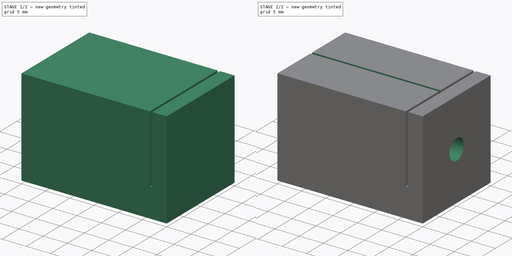
[diagram: build sequence overview — one tinted view per stage of 2, left to right]
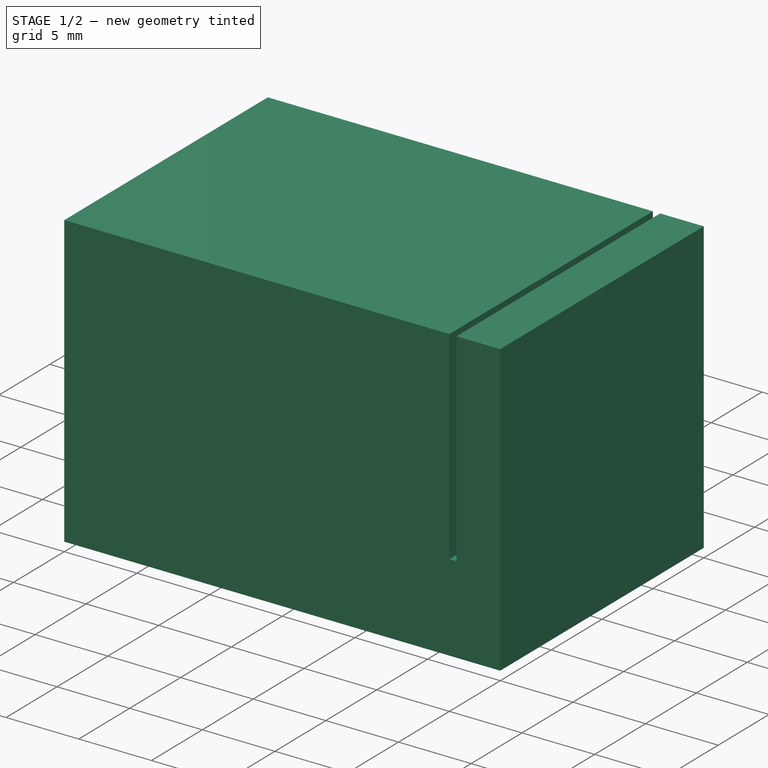
[diagram: stage 1 of 2 — iso view after this stage's code; geometry added in this stage tinted green]
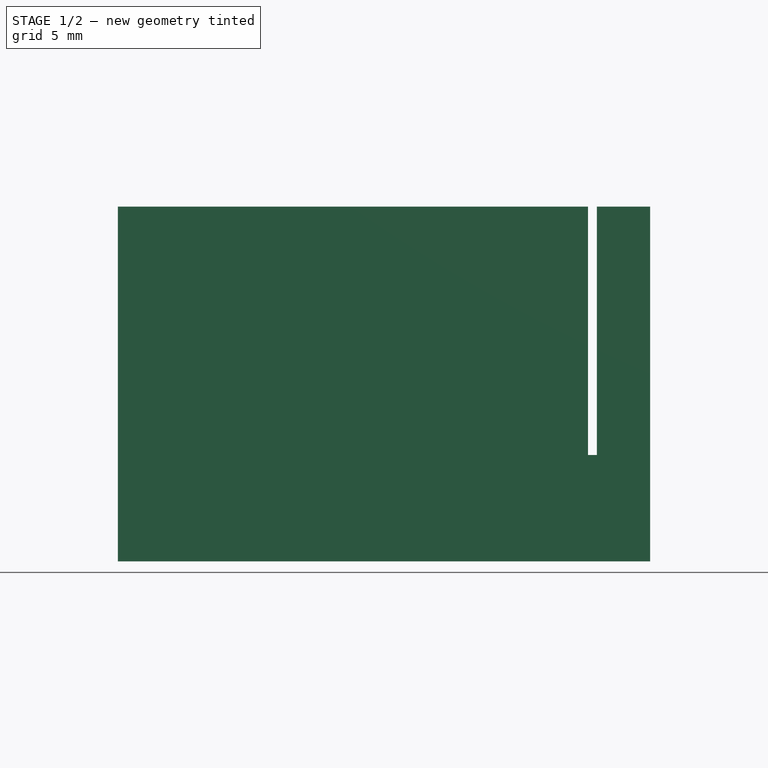
[diagram: stage 1 of 2 — front view after this stage's code; geometry added in this stage tinted green]
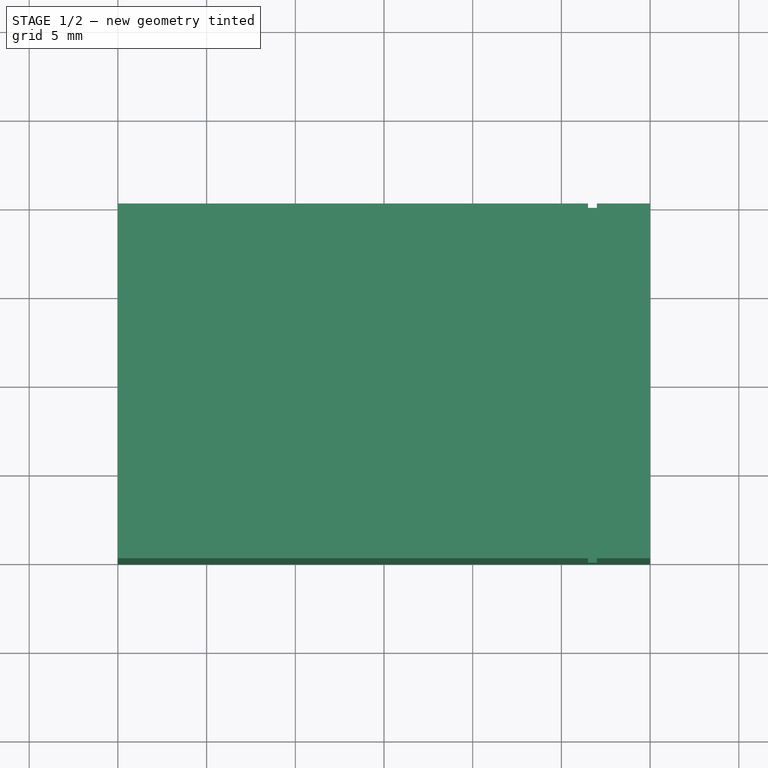
[diagram: stage 1 of 2 — top view after this stage's code; geometry added in this stage tinted green]
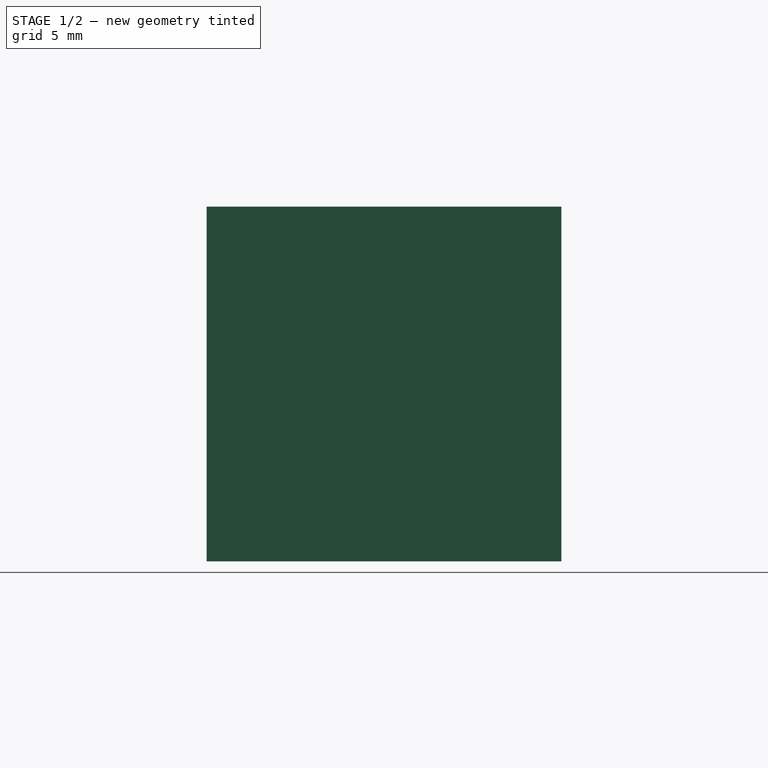
[diagram: stage 1 of 2 — right view after this stage's code; geometry added in this stage tinted green]
FCSTD DOCUMENT  (FreeCAD 1.0R39109 (Git))
Label: tube_saw_help
License: All rights reserved
LicenseURL: https://en.wikipedia.org/wiki/All_rights_reserved
objects: Sketcher::SketchObject×4, PartDesign::Pocket×3, Spreadsheet::Sheet×1, PartDesign::Pad×1, PartDesign::Body×1
note: 21 computed .brp shape members not serialized (recipe doc carries the construction recipe); baked Part::Feature solids carry a one-line shape summary decoded from their .brp

FEATURE [Spreadsheet::Sheet] Spreadsheet
  cells = A1='Height; B1(block_height)=20; A2='Width; B2(block_width)=30; A3='Depth; B3(block_depth)=20; A4='Cut position; B4(cut_position)=3; A5='Cut Width; B5(cut_width)=0.5; A6='Hole dia; B6(hole_dia)=4.2; A7='Tension slot width; B7(tension_slot_width)=0.5; A8='Slot depth factor; B8(slot_factor)=0.7; A12='Calculations; A13='Cut depth; B13(cut_depth)==block_height * slot_factor; A14='Tension slot depth; B14(tension_slot_dep)==block_width - cut_position - cut_width; A15='Tension slot height; B15(tension_slot_heig)==block_height * slot_factor
FEATURE [Sketcher::SketchObject] Sketch
  ArcFitTolerance = 1e-06
  AttachmentSupport = -> [XY_Plane]
  FullyConstrained = true
  MakeInternals = false
  MapMode = 5
  expr: Constraints[10] = Spreadsheet.block_width
  expr: Constraints[9] = Spreadsheet.block_depth
  sketch-geometry (4):
    g0: LineSegment StartX=-15 StartY=10 StartZ=0 EndX=-15 EndY=-10 EndZ=0
    g1: LineSegment StartX=-15 StartY=-10 StartZ=0 EndX=15 EndY=-10 EndZ=0
    g2: LineSegment StartX=15 StartY=-10 StartZ=0 EndX=15 EndY=10 EndZ=0
    g3: LineSegment StartX=15 StartY=10 StartZ=0 EndX=-15 EndY=10 EndZ=0
  constraints (11):
    c: Coincident(g0,g1)
    c: Coincident(g1,g2)
    c: Coincident(g2,g3)
    c: Coincident(g3,g0)
    c: Vertical(g0)
    c: Vertical(g2)
    c: Horizontal(g1)
    c: Horizontal(g3)
    c: Symmetric(g2,g0,g-1)
    c: DistanceY(g2,g2) = 20
    c: DistanceX(g1,g1) = 30
FEATURE [PartDesign::Pad] Pad  label="main_holder"
  Direction = (0,0,1)
  Length = 20
  Length2 = 10
  Profile = -> Sketch
  ReferenceAxis = -> Sketch [N_Axis]
  Refine = true
  Suppressed = false
  Type = 0
  expr: Length = Spreadsheet.block_height
FEATURE [Sketcher::SketchObject] Sketch001
  ArcFitTolerance = 1e-06
  AttachmentSupport = -> [Pad]
  ExternalGeometry = -> [Pad]
  FullyConstrained = true
  MakeInternals = false
  MapMode = 5
  Placement = pos=(0,-10,0) rot=(1,0,0;1.5708rad)
  expr: Constraints[10] = Spreadsheet.cut_position
  expr: Constraints[11] = Spreadsheet.cut_depth
  expr: Constraints[9] = Spreadsheet.cut_width
  sketch-geometry (4):
    g0: LineSegment StartX=11.5 StartY=20 StartZ=0 EndX=11.5 EndY=6 EndZ=0
    g1: LineSegment StartX=11.5 StartY=6 StartZ=0 EndX=12 EndY=6 EndZ=0
    g2: LineSegment StartX=12 StartY=6 StartZ=0 EndX=12 EndY=20 EndZ=0
    g3: LineSegment StartX=12 StartY=20 StartZ=0 EndX=11.5 EndY=20 EndZ=0
  constraints (12):
    c: Coincident(g0,g1)
    c: Coincident(g1,g2)
    c: Coincident(g2,g3)
    c: Coincident(g3,g0)
    c: Vertical(g0)
    c: Vertical(g2)
    c: Horizontal(g1)
    c: Horizontal(g3)
    c: PointOnObject(g0,g-4)
    c: DistanceX(g3,g3) = 0.5
    c: DistanceX(g2,g-4) = 3
    c: DistanceY(g2,g2) = 14
FEATURE [PartDesign::Pocket] Pocket  label="cut_slot"
  BaseFeature = -> Pad
  Direction = (0,1,-2e-16)
  Length = 5
  Length2 = 5
  Profile = -> Sketch001
  ReferenceAxis = -> Sketch001 [N_Axis]
  Refine = true
  Suppressed = false
  Type = 1
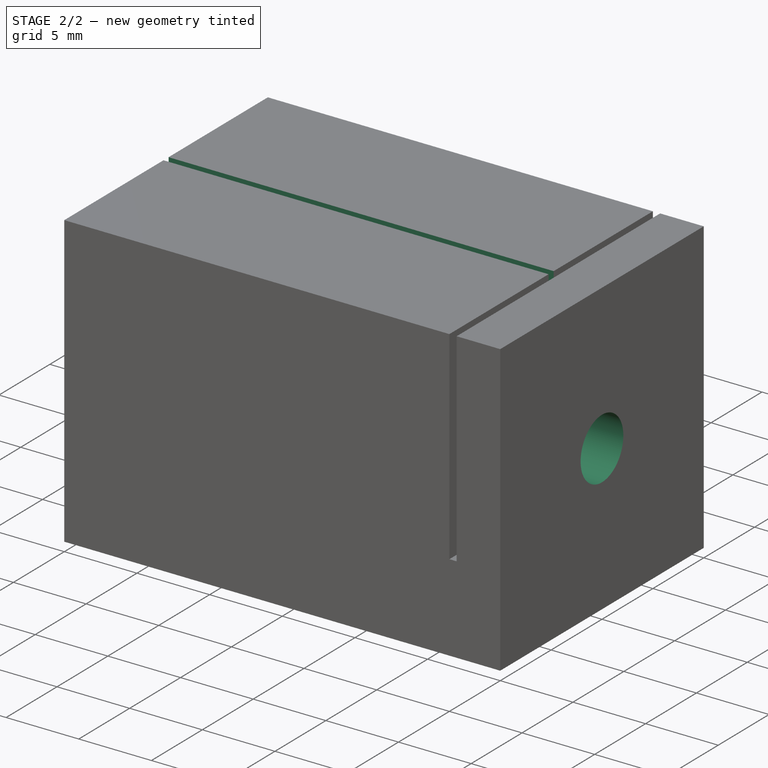
[diagram: stage 2 of 2 — iso view after this stage's code; geometry added in this stage tinted green]
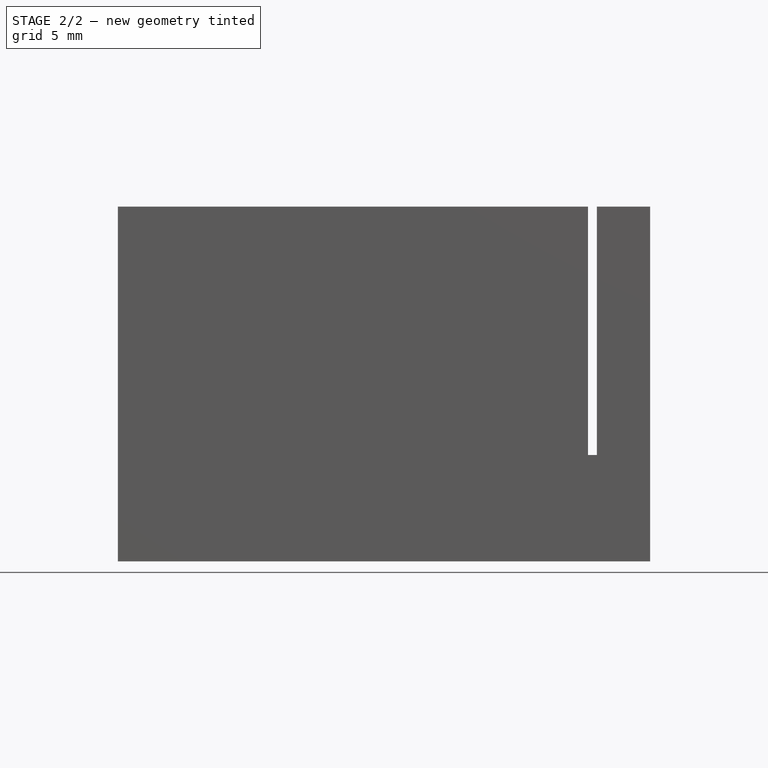
[diagram: stage 2 of 2 — front view after this stage's code; geometry added in this stage tinted green]
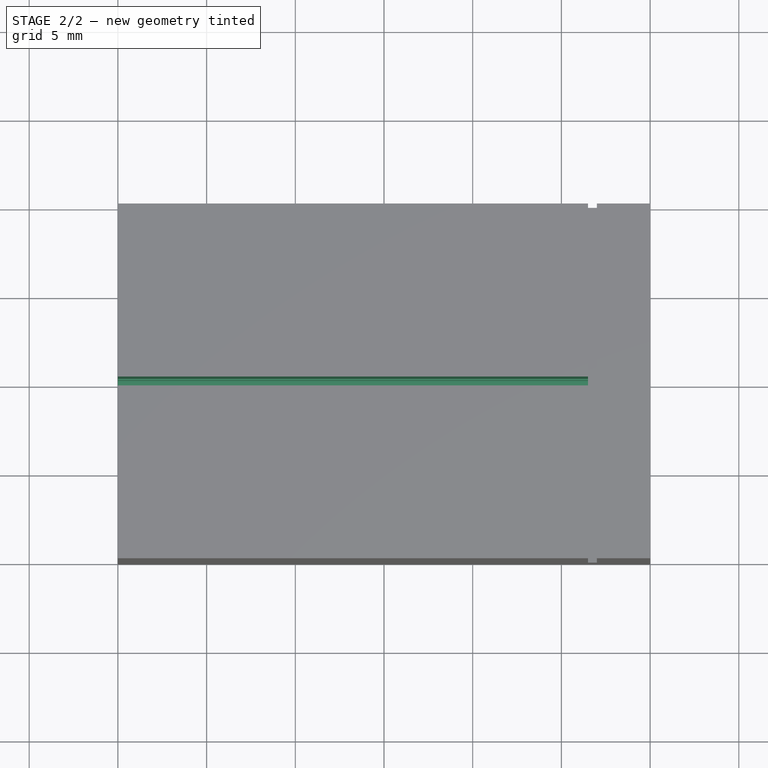
[diagram: stage 2 of 2 — top view after this stage's code; geometry added in this stage tinted green]
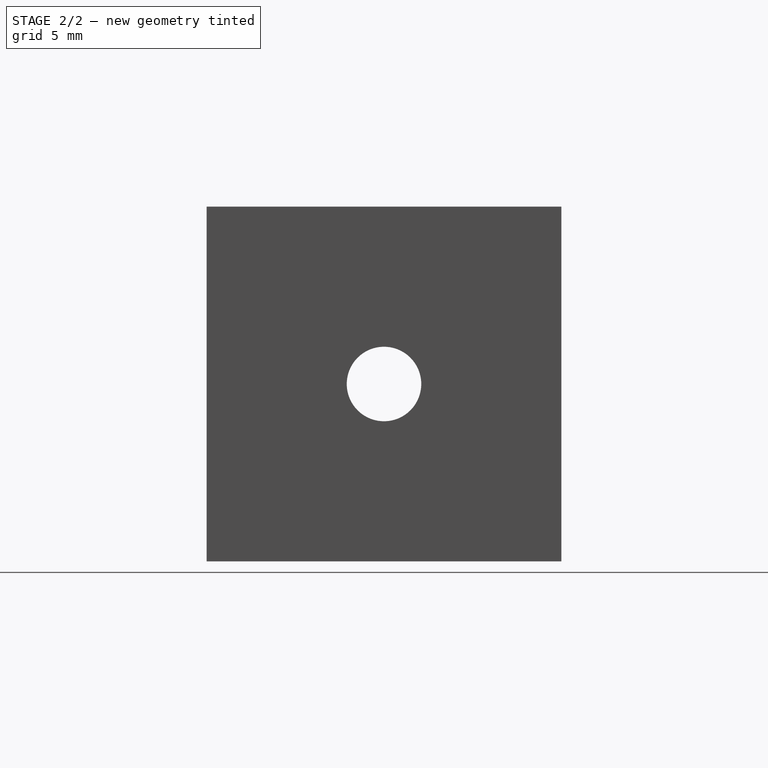
[diagram: stage 2 of 2 — right view after this stage's code; geometry added in this stage tinted green]
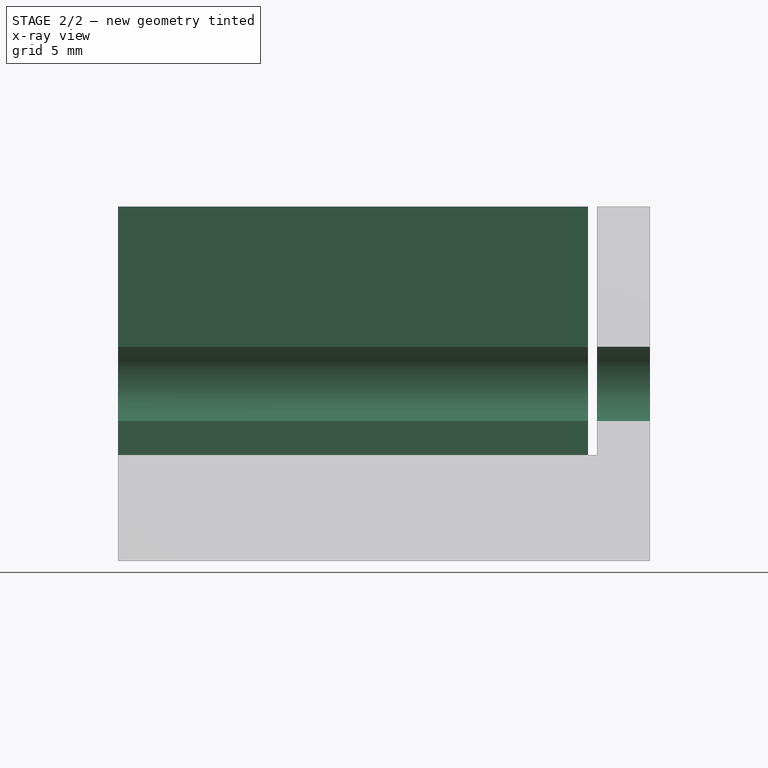
[diagram: stage 2 of 2 — x-ray composite at the front view; earlier geometry ghosted, this stage's added geometry solid]
FEATURE [Sketcher::SketchObject] Sketch002
  ArcFitTolerance = 1e-06
  AttachmentSupport = -> [Pocket]
  ExternalGeometry = -> [Pocket]
  FullyConstrained = true
  MakeInternals = false
  MapMode = 5
  Placement = pos=(15,0,0) rot=(0.57735,0.57735,0.57735;2.0944rad)
  expr: Constraints[1] = Spreadsheet.hole_dia
  sketch-geometry (1):
    g0: Circle CenterX=-1e-16 CenterY=10 CenterZ=0 NormalX=0 NormalY=0 NormalZ=1 AngleXU=0 Radius=2.1
  constraints (2):
    c: Symmetric(g-3,g-4,g0)
    c: Diameter(g0) = 4.2
FEATURE [PartDesign::Pocket] Pocket001  label="tube_hole"
  BaseFeature = -> Pocket
  Direction = (-1,0,0)
  Length = 5
  Length2 = 5
  Profile = -> Sketch002
  ReferenceAxis = -> Sketch002 [N_Axis]
  Refine = true
  Suppressed = false
  Type = 1
FEATURE [Sketcher::SketchObject] Sketch003
  ArcFitTolerance = 1e-06
  AttachmentSupport = -> [Pocket001]
  ExternalGeometry = -> [Pocket001]
  FullyConstrained = true
  MakeInternals = false
  MapMode = 5
  Placement = pos=(-15,0,0) rot=(0.57735,-0.57735,-0.57735;2.0944rad)
  expr: Constraints[11] = Spreadsheet.tension_slot_heig
  expr: Constraints[8] = Spreadsheet.tension_slot_width
  sketch-geometry (5):
    g0: LineSegment StartX=-0.25 StartY=20 StartZ=0 EndX=-0.25 EndY=6 EndZ=0
    g1: LineSegment StartX=-0.25 StartY=6 StartZ=0 EndX=0.25 EndY=6 EndZ=0
    g2: LineSegment StartX=0.25 StartY=6 StartZ=0 EndX=0.25 EndY=20 EndZ=0
    g3: LineSegment StartX=0.25 StartY=20 StartZ=0 EndX=-0.25 EndY=20 EndZ=0
    g4: GeomPoint X=3e-16 Y=20 Z=0
  constraints (12):
    c: Coincident(g0,g1)
    c: Coincident(g1,g2)
    c: Coincident(g2,g3)
    c: Coincident(g3,g0)
    c: Vertical(g0)
    c: Vertical(g2)
    c: Horizontal(g1)
    c: Horizontal(g3)
    c: DistanceX(g3,g3) = 0.5
    c: Symmetric(g0,g2,g4)
    c: Symmetric(g-4,g-3,g4)
    c: DistanceY(g2,g2) = 14
FEATURE [PartDesign::Pocket] Pocket002
  BaseFeature = -> Pocket001
  Direction = (1,0,0)
  Length = 26.5
  Length2 = 5
  Profile = -> Sketch003
  ReferenceAxis = -> Sketch003 [N_Axis]
  Refine = true
  Suppressed = false
  Type = 0
  expr: Length = Spreadsheet.tension_slot_dep
FEATURE [PartDesign::Body] Body
  AllowCompound = false
  Group = -> [Sketch,Pad,Sketch001,Pocket,Sketch002,Pocket001,Sketch003,Pocket002]
  Origin = -> Origin
  Tip = -> Pocket002
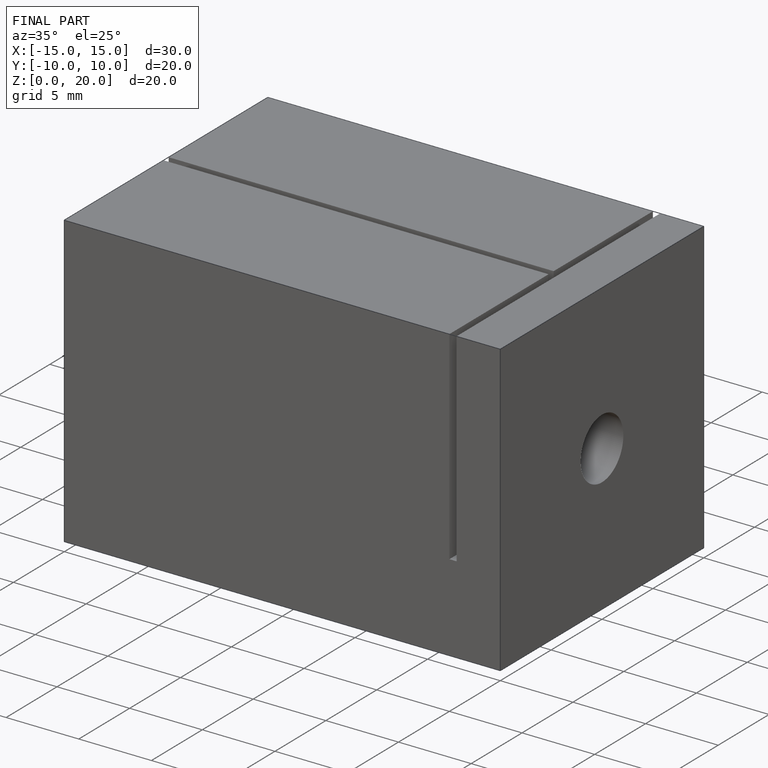
[diagram: finished part — iso view with bounding-box wireframe]
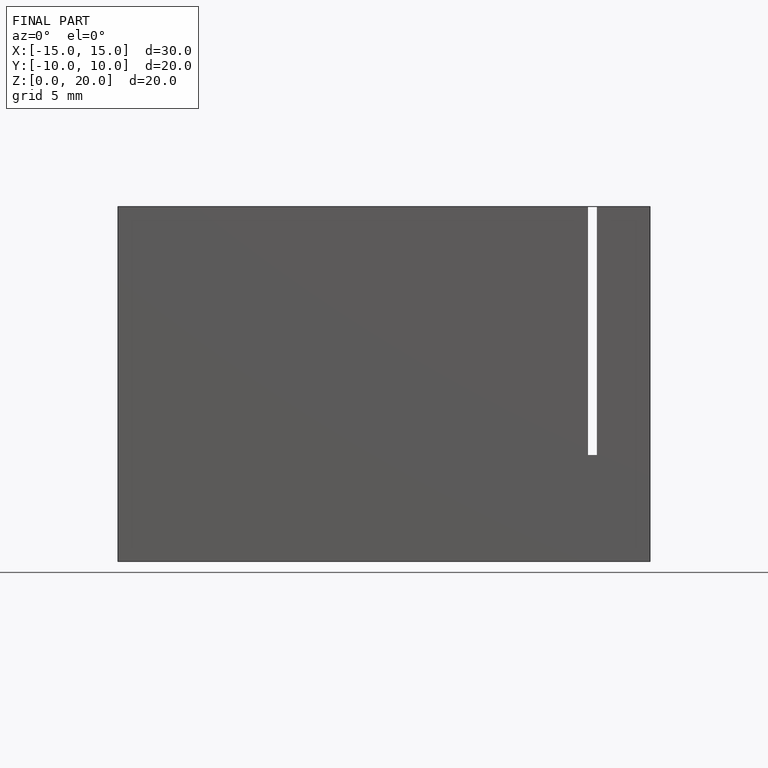
[diagram: finished part — front view with bounding-box wireframe]
